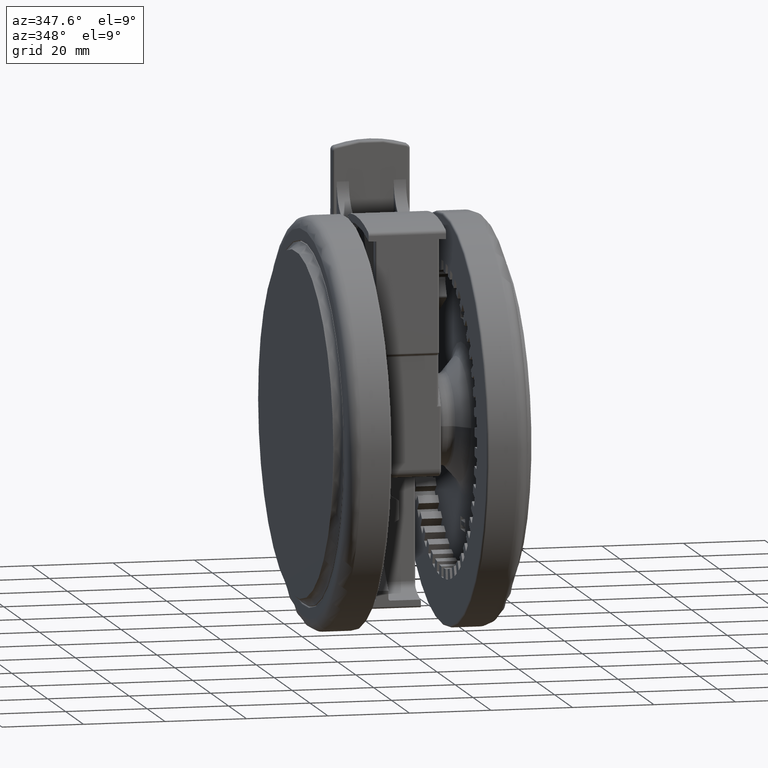
[diagram: clean part render]
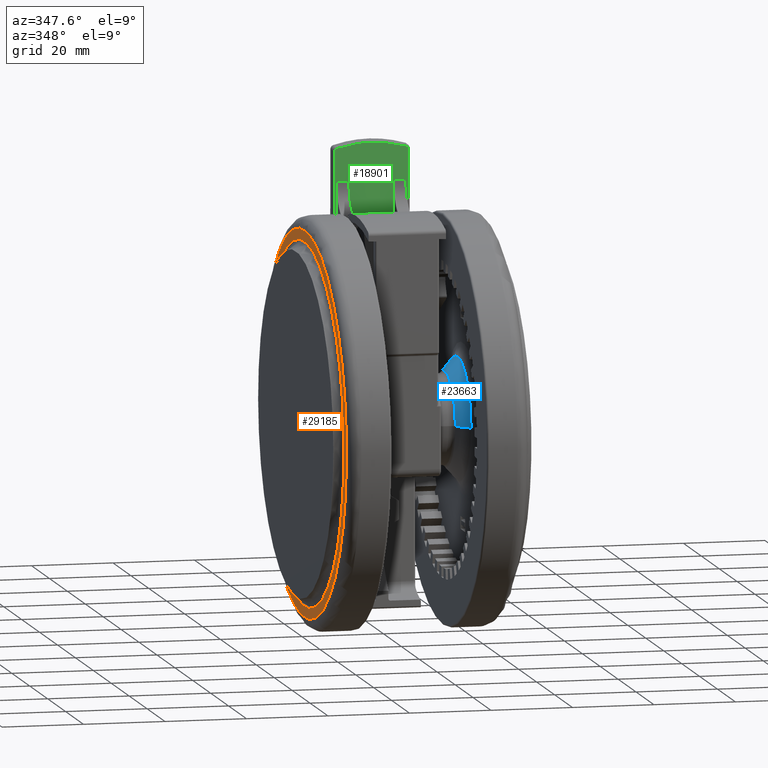
[diagram: same view with three faces highlighted in distinct colors, each labeled with its STEP entity id]
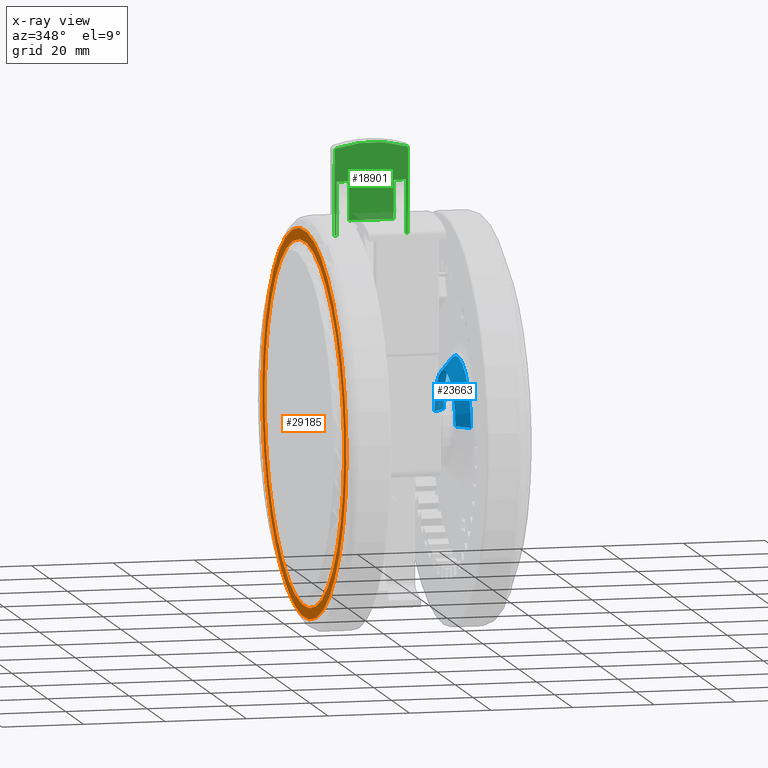
[diagram: x-ray of the same camera — body ghosted, the three highlighted faces saturated]
A machine part, auxiliary view with three faces highlighted in distinct colors.
The next image is the same camera in x-ray (body ghosted, the three faces saturated) — at least one of them is partly hidden behind the body in this view.
Their STEP definitions:

[orange] entity #29185 — the highlighted planar face has unit normal (1, -0, 0).
#307 = DIRECTION ( 'NONE',  ( 3.380642383533773200E-017, 2.202247500052102700E-016, 1.000000000000000000 ) ) ;
#1662 = EDGE_CURVE ( 'NONE', #32162, #43959, #21199, .T. ) ;
#3337 = CARTESIAN_POINT ( 'NONE',  ( 1.387778780781445700E-014, -8.673617379884035500E-015, -46.49999999999994300 ) ) ;
#3444 = AXIS2_PLACEMENT_3D ( 'NONE', #12771, #39209, #16613 ) ;
#7131 = DIRECTION ( 'NONE',  ( -0.9587657712597809100, 0.2841974592789973100, 0.0000000000000000000 ) ) ;
#7252 = ORIENTED_EDGE ( 'NONE', *, *, #1662, .T. ) ;
#9096 = VERTEX_POINT ( 'NONE', #42008 ) ;
#10325 = CARTESIAN_POINT ( 'NONE',  ( -12.50468820827586900, -42.18569393543036500, -46.49999999999993600 ) ) ;
#11851 = VERTEX_POINT ( 'NONE', #37835 ) ;
#12057 = FACE_OUTER_BOUND ( 'NONE', #45895, .T. ) ;
#12771 = CARTESIAN_POINT ( 'NONE',  ( 1.387778780781445700E-014, -8.673617379884035500E-015, -46.49999999999994300 ) ) ;
#14138 = ORIENTED_EDGE ( 'NONE', *, *, #31019, .T. ) ;
#14373 = EDGE_CURVE ( 'NONE', #43959, #32162, #44589, .T. ) ;
#16613 = DIRECTION ( 'NONE',  ( -0.9587657712597809100, 0.2841974592789973100, 0.0000000000000000000 ) ) ;
#20023 = DIRECTION ( 'NONE',  ( 3.380642383533773200E-017, 2.202247500052102700E-016, 1.000000000000000000 ) ) ;
#21199 = CIRCLE ( 'NONE', #29052, 44.29999999999999700 ) ;
#21762 = DIRECTION ( 'NONE',  ( 6.405764716563957100E-017, 2.112576789350188500E-016, 1.000000000000000000 ) ) ;
#21774 = CIRCLE ( 'NONE', #22171, 47.00000000000000700 ) ;
#22171 = AXIS2_PLACEMENT_3D ( 'NONE', #3337, #29770, #7131 ) ;
#22940 = CARTESIAN_POINT ( 'NONE',  ( 1.387778780781445700E-014, -8.673617379884035500E-015, -46.49999999999994300 ) ) ;
#26744 = DIRECTION ( 'NONE',  ( -0.9587657712597810200, 0.2841974592789973700, 0.0000000000000000000 ) ) ;
#27076 = EDGE_LOOP ( 'NONE', ( #7252, #27844 ) ) ;
#27844 = ORIENTED_EDGE ( 'NONE', *, *, #14373, .T. ) ;
#29052 = AXIS2_PLACEMENT_3D ( 'NONE', #42592, #20023, #46369 ) ;
#29185 = ADVANCED_FACE ( 'NONE', ( #12057, #39842 ), #44178, .F. ) ;
#29770 = DIRECTION ( 'NONE',  ( -3.380642383533773200E-017, -2.202247500052102700E-016, -1.000000000000000000 ) ) ;
#30544 = AXIS2_PLACEMENT_3D ( 'NONE', #10325, #21762, #48142 ) ;
#31019 = EDGE_CURVE ( 'NONE', #11851, #9096, #40838, .T. ) ;
#31943 = CARTESIAN_POINT ( 'NONE',  ( -42.47332366680828400, 12.58994744605957400, -46.49999999999995700 ) ) ;
#32162 = VERTEX_POINT ( 'NONE', #31943 ) ;
#32882 = EDGE_CURVE ( 'NONE', #9096, #11851, #21774, .T. ) ;
#36296 = ORIENTED_EDGE ( 'NONE', *, *, #32882, .T. ) ;
#36599 = CARTESIAN_POINT ( 'NONE',  ( 42.47332366680831200, -12.58994744605959700, -46.49999999999995700 ) ) ;
#37835 = CARTESIAN_POINT ( 'NONE',  ( -45.06199124920969700, 13.35728058611286800, -46.50000000000000000 ) ) ;
#39209 = DIRECTION ( 'NONE',  ( -3.380642383533773200E-017, -2.202247500052102700E-016, -1.000000000000000000 ) ) ;
#39842 = FACE_BOUND ( 'NONE', #27076, .T. ) ;
#40838 = CIRCLE ( 'NONE', #3444, 47.00000000000000700 ) ;
#42008 = CARTESIAN_POINT ( 'NONE',  ( 45.06199124920972600, -13.35728058611288900, -46.50000000000000000 ) ) ;
#42592 = CARTESIAN_POINT ( 'NONE',  ( 1.387778780781445700E-014, -8.673617379884035500E-015, -46.49999999999994300 ) ) ;
#43408 = AXIS2_PLACEMENT_3D ( 'NONE', #22940, #307, #26744 ) ;
#43959 = VERTEX_POINT ( 'NONE', #36599 ) ;
#44178 = PLANE ( 'NONE',  #30544 ) ;
#44589 = CIRCLE ( 'NONE', #43408, 44.29999999999999700 ) ;
#45895 = EDGE_LOOP ( 'NONE', ( #14138, #36296 ) ) ;
#46369 = DIRECTION ( 'NONE',  ( -0.9587657712597810200, 0.2841974592789973700, 0.0000000000000000000 ) ) ;
#48142 = DIRECTION ( 'NONE',  ( -0.9587657712597810200, 0.2841974592789973700, 1.377383883340825900E-018 ) ) ;

[blue] entity #23663 — the highlighted conical surface has half-angle 47.726 deg.
#2874 = CARTESIAN_POINT ( 'NONE',  ( -1.399049068356119500E-014, 7.911710182845832200E-016, -8.900299633020219800 ) ) ;
#6644 = CIRCLE ( 'NONE', #29640, 11.65465441200737500 ) ;
#6667 = DIRECTION ( 'NONE',  ( -1.509229262741579100E-016, 1.000000000000000000, 0.0000000000000000000 ) ) ;
#7337 = ORIENTED_EDGE ( 'NONE', *, *, #21104, .F. ) ;
#7419 = EDGE_LOOP ( 'NONE', ( #7337, #27342, #19000, #28469 ) ) ;
#7942 = LINE ( 'NONE', #40266, #10315 ) ;
#8461 = EDGE_CURVE ( 'NONE', #13695, #42658, #28994, .T. ) ;
#10315 = VECTOR ( 'NONE', #17702, 1000.000000000000100 ) ;
#10318 = AXIS2_PLACEMENT_3D ( 'NONE', #16786, #12960, #39379 ) ;
#11662 = CARTESIAN_POINT ( 'NONE',  ( -1.364323386623826700E-014, -11.65465441200737300, -12.00485962544778000 ) ) ;
#12960 = DIRECTION ( 'NONE',  ( 2.126349141558171500E-017, 1.563809541294688800E-016, 1.000000000000000000 ) ) ;
#13695 = VERTEX_POINT ( 'NONE', #31853 ) ;
#15849 = CARTESIAN_POINT ( 'NONE',  ( -1.581545901688351600E-014, 11.65465441200737700, -12.00485962544778200 ) ) ;
#16786 = CARTESIAN_POINT ( 'NONE',  ( -1.406915923055469400E-014, 1.194656626799991000E-015, -12.59999999999993900 ) ) ;
#17702 = DIRECTION ( 'NONE',  ( 3.536076908054703600E-017, -0.7399400733959440300, 0.6726727939963120800 ) ) ;
#19000 = ORIENTED_EDGE ( 'NONE', *, *, #29226, .T. ) ;
#20192 = CARTESIAN_POINT ( 'NONE',  ( -1.405650446830933600E-014, 1.287725246413426900E-015, -12.00485962544778200 ) ) ;
#21104 = EDGE_CURVE ( 'NONE', #45523, #42658, #7942, .T. ) ;
#23663 = ADVANCED_FACE ( 'NONE', ( #28417 ), #27222, .T. ) ;
#23981 = DIRECTION ( 'NONE',  ( -1.509229262741581400E-016, 1.000000000000000000, 0.0000000000000000000 ) ) ;
#25719 = DIRECTION ( 'NONE',  ( -9.737054896379517700E-017, 0.7399400733959441400, 0.6726727939963119700 ) ) ;
#27222 = CONICAL_SURFACE ( 'NONE', #10318, 11.00000000000000000, 0.8329812666744321700 ) ;
#27342 = ORIENTED_EDGE ( 'NONE', *, *, #37647, .T. ) ;
#28417 = FACE_OUTER_BOUND ( 'NONE', #7419, .T. ) ;
#28469 = ORIENTED_EDGE ( 'NONE', *, *, #8461, .T. ) ;
#28994 = CIRCLE ( 'NONE', #35650, 15.06967040367769400 ) ;
#29226 = EDGE_CURVE ( 'NONE', #30366, #13695, #29833, .T. ) ;
#29303 = DIRECTION ( 'NONE',  ( -2.126349141558171500E-017, -1.563809541294688800E-016, -1.000000000000000000 ) ) ;
#29640 = AXIS2_PLACEMENT_3D ( 'NONE', #20192, #46552, #23981 ) ;
#29833 = LINE ( 'NONE', #44499, #47491 ) ;
#30366 = VERTEX_POINT ( 'NONE', #15849 ) ;
#31853 = CARTESIAN_POINT ( 'NONE',  ( -1.855627835848366400E-014, 15.06967040367769600, -8.900299633020221500 ) ) ;
#35650 = AXIS2_PLACEMENT_3D ( 'NONE', #2874, #29303, #6667 ) ;
#37647 = EDGE_CURVE ( 'NONE', #45523, #30366, #6644, .T. ) ;
#38385 = CARTESIAN_POINT ( 'NONE',  ( -1.144850310697153700E-014, -15.06967040367769600, -8.900299633020218000 ) ) ;
#39379 = DIRECTION ( 'NONE',  ( -1.509229262741578900E-016, 1.000000000000000000, 0.0000000000000000000 ) ) ;
#40266 = CARTESIAN_POINT ( 'NONE',  ( -1.375611852060104400E-014, -10.99999999999999800, -12.59999999999993900 ) ) ;
#42658 = VERTEX_POINT ( 'NONE', #38385 ) ;
#44499 = CARTESIAN_POINT ( 'NONE',  ( -1.572931141957043100E-014, 11.00000000000000200, -12.59999999999993900 ) ) ;
#45523 = VERTEX_POINT ( 'NONE', #11662 ) ;
#46552 = DIRECTION ( 'NONE',  ( 2.126349141558171500E-017, 1.563809541294688800E-016, 1.000000000000000000 ) ) ;
#47491 = VECTOR ( 'NONE', #25719, 1000.000000000000100 ) ;

[green] entity #18901 — the highlighted planar face has unit normal (0, 1, 0.0074).
#75 = EDGE_CURVE ( 'NONE', #42437, #36380, #21461, .T. ) ;
#187 = CARTESIAN_POINT ( 'NONE',  ( 41.17683676159111200, -26.26108610560168800, -32.79999999999995500 ) ) ;
#233 = AXIS2_PLACEMENT_3D ( 'NONE', #20911, #47302, #24718 ) ;
#469 = FACE_OUTER_BOUND ( 'NONE', #23473, .T. ) ;
#722 = VERTEX_POINT ( 'NONE', #187 ) ;
#1437 = CARTESIAN_POINT ( 'NONE',  ( 64.05045386509547700, -26.09097202568876400, -33.29999999999995500 ) ) ;
#1874 = VERTEX_POINT ( 'NONE', #2336 ) ;
#1889 = EDGE_CURVE ( 'NONE', #1874, #30870, #10529, .T. ) ;
#2336 = CARTESIAN_POINT ( 'NONE',  ( 54.23730858570593900, -26.16395366968066900, -15.79999999999995300 ) ) ;
#3446 = CARTESIAN_POINT ( 'NONE',  ( 61.77685800758094100, -26.10788105523335300, -15.29999999999995500 ) ) ;
#4395 = CARTESIAN_POINT ( 'NONE',  ( 44.70098897598083500, -26.23487652498699400, -29.79999999999995100 ) ) ;
#5074 = CARTESIAN_POINT ( 'NONE',  ( 61.77685800758094100, -26.10788105523335600, -15.29999999999995500 ) ) ;
#5992 = DIRECTION ( 'NONE',  ( -0.9999723456906809400, -0.007436925028332594600, 2.176034244634824600E-017 ) ) ;
#6301 = CARTESIAN_POINT ( 'NONE',  ( 39.60099525168819000, -26.27280584486866000, -15.79999999999995300 ) ) ;
#6392 = AXIS2_PLACEMENT_3D ( 'NONE', #24809, #28631, #5992 ) ;
#7533 = LINE ( 'NONE', #28584, #26465 ) ;
#7593 = ORIENTED_EDGE ( 'NONE', *, *, #25172, .T. ) ;
#7826 = ORIENTED_EDGE ( 'NONE', *, *, #17108, .T. ) ;
#8344 = LINE ( 'NONE', #21321, #37377 ) ;
#8839 = DIRECTION ( 'NONE',  ( 0.9999723456906809400, 0.007436925028332594600, -2.176034244634824300E-017 ) ) ;
#8863 = CARTESIAN_POINT ( 'NONE',  ( 39.60099525168819000, -26.27280584486866400, -32.79999999999995500 ) ) ;
#8939 = EDGE_CURVE ( 'NONE', #36380, #47553, #10661, .T. ) ;
#9722 = CARTESIAN_POINT ( 'NONE',  ( 39.60099525168819000, -26.27280584486866400, -29.79999999999995100 ) ) ;
#9794 = ORIENTED_EDGE ( 'NONE', *, *, #30522, .T. ) ;
#9894 = EDGE_CURVE ( 'NONE', #30870, #18825, #44246, .T. ) ;
#10529 = LINE ( 'NONE', #6301, #39497 ) ;
#10661 = LINE ( 'NONE', #9722, #29622 ) ;
#10855 = CIRCLE ( 'NONE', #22935, 29.50000000000000400 ) ;
#11373 = VECTOR ( 'NONE', #11644, 1000.000000000000000 ) ;
#11644 = DIRECTION ( 'NONE',  ( 2.126349141558171200E-017, 1.779100357716780700E-016, 1.000000000000000000 ) ) ;
#13071 = CARTESIAN_POINT ( 'NONE',  ( 39.60099525168819000, -26.27280584486866000, -18.79999999999995500 ) ) ;
#13983 = VERTEX_POINT ( 'NONE', #3446 ) ;
#14359 = DIRECTION ( 'NONE',  ( -2.126349141558171200E-017, -1.779100357716780700E-016, -1.000000000000000000 ) ) ;
#14971 = CARTESIAN_POINT ( 'NONE',  ( 41.17683676159110500, -26.26108610560169500, -33.29999999999995500 ) ) ;
#15370 = VECTOR ( 'NONE', #8839, 1000.000000000000100 ) ;
#15472 = VERTEX_POINT ( 'NONE', #26794 ) ;
#16580 = EDGE_CURVE ( 'NONE', #23164, #47967, #26122, .T. ) ;
#16606 = CARTESIAN_POINT ( 'NONE',  ( 41.17683676159110500, -26.26108610560169200, -15.29999999999995500 ) ) ;
#17108 = EDGE_CURVE ( 'NONE', #13983, #15472, #18408, .T. ) ;
#17270 = VECTOR ( 'NONE', #27873, 1000.000000000000100 ) ;
#17995 = DIRECTION ( 'NONE',  ( -0.007436925028332595400, 0.9999723456906810500, -6.672774858359753300E-017 ) ) ;
#18330 = AXIS2_PLACEMENT_3D ( 'NONE', #43458, #20866, #47251 ) ;
#18408 = CIRCLE ( 'NONE', #18330, 0.5000000000000025500 ) ;
#18634 = ORIENTED_EDGE ( 'NONE', *, *, #43363, .T. ) ;
#18825 = VERTEX_POINT ( 'NONE', #16606 ) ;
#18870 = CARTESIAN_POINT ( 'NONE',  ( 41.17683676159110500, -26.26108610560169500, -33.79999999999995500 ) ) ;
#18901 = ADVANCED_FACE ( 'NONE', ( #469 ), #47393, .F. ) ;
#19132 = ORIENTED_EDGE ( 'NONE', *, *, #29978, .F. ) ;
#19413 = CARTESIAN_POINT ( 'NONE',  ( 41.17683676159111200, -26.26108610560168400, -15.79999999999995300 ) ) ;
#19794 = VECTOR ( 'NONE', #27915, 1000.000000000000100 ) ;
#19893 = VERTEX_POINT ( 'NONE', #46437 ) ;
#19994 = VERTEX_POINT ( 'NONE', #43313 ) ;
#20798 = CIRCLE ( 'NONE', #233, 0.5000000000000025500 ) ;
#20866 = DIRECTION ( 'NONE',  ( -0.007436925028332595400, 0.9999723456906810500, -6.672774858359753300E-017 ) ) ;
#20911 = CARTESIAN_POINT ( 'NONE',  ( 61.77685800758094100, -26.10788105523336000, -32.79999999999995500 ) ) ;
#21321 = CARTESIAN_POINT ( 'NONE',  ( 41.17683676159110500, -26.26108610560169500, -33.79999999999995500 ) ) ;
#21461 = LINE ( 'NONE', #27031, #11373 ) ;
#21577 = ORIENTED_EDGE ( 'NONE', *, *, #1889, .T. ) ;
#21771 = CARTESIAN_POINT ( 'NONE',  ( 54.23730858570593900, -26.16395366968066900, -15.79999999999995300 ) ) ;
#22769 = EDGE_CURVE ( 'NONE', #47967, #722, #8344, .T. ) ;
#22935 = AXIS2_PLACEMENT_3D ( 'NONE', #40559, #17995, #44338 ) ;
#23164 = VERTEX_POINT ( 'NONE', #43524 ) ;
#23473 = EDGE_LOOP ( 'NONE', ( #39966, #18634, #19132, #41218, #21577, #48938, #7593, #7826, #31098, #9794, #39957, #45784, #40872, #45783 ) ) ;
#24400 = LINE ( 'NONE', #13071, #25598 ) ;
#24718 = DIRECTION ( 'NONE',  ( -0.9999723456906810500, -0.007436925028331226700, -1.387778780781438600E-014 ) ) ;
#24809 = CARTESIAN_POINT ( 'NONE',  ( 64.05045386509547700, -26.09097202568876400, -33.79999999999995500 ) ) ;
#25172 = EDGE_CURVE ( 'NONE', #18825, #13983, #26569, .T. ) ;
#25598 = VECTOR ( 'NONE', #39487, 1000.000000000000100 ) ;
#26122 = LINE ( 'NONE', #1437, #17270 ) ;
#26291 = DIRECTION ( 'NONE',  ( 2.126349141558171200E-017, 1.779100357716780700E-016, 1.000000000000000000 ) ) ;
#26465 = VECTOR ( 'NONE', #32362, 1000.000000000000000 ) ;
#26569 = LINE ( 'NONE', #5074, #15370 ) ;
#26794 = CARTESIAN_POINT ( 'NONE',  ( 62.25488515436038000, -26.10432590486603000, -15.65344827586202400 ) ) ;
#26942 = CARTESIAN_POINT ( 'NONE',  ( 44.70098897598083500, -26.23487652498699100, -18.79999999999995500 ) ) ;
#27031 = CARTESIAN_POINT ( 'NONE',  ( 54.23730858570593900, -26.16395366968067600, -32.79999999999995500 ) ) ;
#27873 = DIRECTION ( 'NONE',  ( -0.9999723456906809400, -0.007436925028332594600, 2.176034244634824300E-017 ) ) ;
#27915 = DIRECTION ( 'NONE',  ( -0.9999723456906809400, -0.007436925028332097600, 2.176034244634821500E-017 ) ) ;
#27946 = EDGE_CURVE ( 'NONE', #42437, #722, #39886, .T. ) ;
#28584 = CARTESIAN_POINT ( 'NONE',  ( 44.70098897598083500, -26.23487652498699400, -18.79999999999995500 ) ) ;
#28631 = DIRECTION ( 'NONE',  ( 0.007436925028332595400, -0.9999723456906810500, 6.672774858359754500E-017 ) ) ;
#28992 = VECTOR ( 'NONE', #14359, 1000.000000000000000 ) ;
#29176 = EDGE_CURVE ( 'NONE', #15472, #19893, #10855, .T. ) ;
#29622 = VECTOR ( 'NONE', #43564, 1000.000000000000100 ) ;
#29657 = CARTESIAN_POINT ( 'NONE',  ( 54.23730858570593900, -26.16395366968067600, -32.79999999999995500 ) ) ;
#29978 = EDGE_CURVE ( 'NONE', #19994, #48523, #24400, .T. ) ;
#30522 = EDGE_CURVE ( 'NONE', #19893, #23164, #20798, .T. ) ;
#30870 = VERTEX_POINT ( 'NONE', #19413 ) ;
#31098 = ORIENTED_EDGE ( 'NONE', *, *, #29176, .T. ) ;
#31225 = CARTESIAN_POINT ( 'NONE',  ( 54.23730858570593900, -26.16395366968067600, -29.79999999999995100 ) ) ;
#31736 = EDGE_CURVE ( 'NONE', #1874, #19994, #39017, .T. ) ;
#32362 = DIRECTION ( 'NONE',  ( 2.126349141558171200E-017, 1.779100357716780700E-016, 1.000000000000000000 ) ) ;
#36380 = VERTEX_POINT ( 'NONE', #31225 ) ;
#36522 = DIRECTION ( 'NONE',  ( 2.126349141558171200E-017, 1.779100357716780700E-016, 1.000000000000000000 ) ) ;
#37377 = VECTOR ( 'NONE', #36522, 1000.000000000000000 ) ;
#39017 = LINE ( 'NONE', #21771, #28992 ) ;
#39487 = DIRECTION ( 'NONE',  ( -0.9999723456906809400, -0.007436925028332097600, 2.176034244634821500E-017 ) ) ;
#39497 = VECTOR ( 'NONE', #43902, 1000.000000000000100 ) ;
#39886 = LINE ( 'NONE', #8863, #19794 ) ;
#39957 = ORIENTED_EDGE ( 'NONE', *, *, #16580, .T. ) ;
#39966 = ORIENTED_EDGE ( 'NONE', *, *, #8939, .T. ) ;
#40559 = CARTESIAN_POINT ( 'NONE',  ( 34.05128349437505600, -26.31407977653873000, -24.29999999999995500 ) ) ;
#40872 = ORIENTED_EDGE ( 'NONE', *, *, #27946, .F. ) ;
#41218 = ORIENTED_EDGE ( 'NONE', *, *, #31736, .F. ) ;
#42437 = VERTEX_POINT ( 'NONE', #29657 ) ;
#43045 = VECTOR ( 'NONE', #26291, 1000.000000000000000 ) ;
#43313 = CARTESIAN_POINT ( 'NONE',  ( 54.23730858570593900, -26.16395366968067300, -18.79999999999995500 ) ) ;
#43363 = EDGE_CURVE ( 'NONE', #47553, #48523, #7533, .T. ) ;
#43458 = CARTESIAN_POINT ( 'NONE',  ( 61.77685800758094100, -26.10788105523335600, -15.79999999999995300 ) ) ;
#43524 = CARTESIAN_POINT ( 'NONE',  ( 61.77685800758094100, -26.10788105523336000, -33.29999999999995500 ) ) ;
#43564 = DIRECTION ( 'NONE',  ( -0.9999723456906809400, -0.007436925028332097600, 2.176034244634821500E-017 ) ) ;
#43902 = DIRECTION ( 'NONE',  ( -0.9999723456906809400, -0.007436925028332097600, 2.176034244634821500E-017 ) ) ;
#44246 = LINE ( 'NONE', #18870, #43045 ) ;
#44338 = DIRECTION ( 'NONE',  ( -0.9999723456906810500, -0.007436925028332557300, 0.0000000000000000000 ) ) ;
#45783 = ORIENTED_EDGE ( 'NONE', *, *, #75, .T. ) ;
#45784 = ORIENTED_EDGE ( 'NONE', *, *, #22769, .T. ) ;
#46437 = CARTESIAN_POINT ( 'NONE',  ( 62.25488515436033800, -26.10432590486602000, -32.94655172413787600 ) ) ;
#47251 = DIRECTION ( 'NONE',  ( -0.9999723456906810500, -0.007436925028331226700, -6.938893903907192900E-015 ) ) ;
#47302 = DIRECTION ( 'NONE',  ( -0.007436925028332595400, 0.9999723456906810500, -6.672774858359753300E-017 ) ) ;
#47393 = PLANE ( 'NONE',  #6392 ) ;
#47553 = VERTEX_POINT ( 'NONE', #4395 ) ;
#47967 = VERTEX_POINT ( 'NONE', #14971 ) ;
#48523 = VERTEX_POINT ( 'NONE', #26942 ) ;
#48938 = ORIENTED_EDGE ( 'NONE', *, *, #9894, .T. ) ;